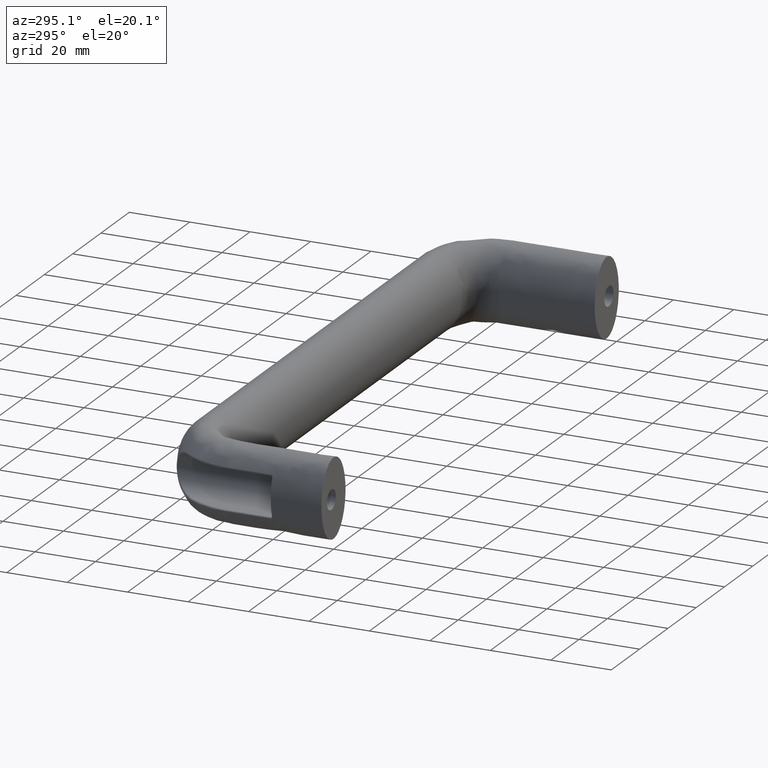
[diagram: clean part render]
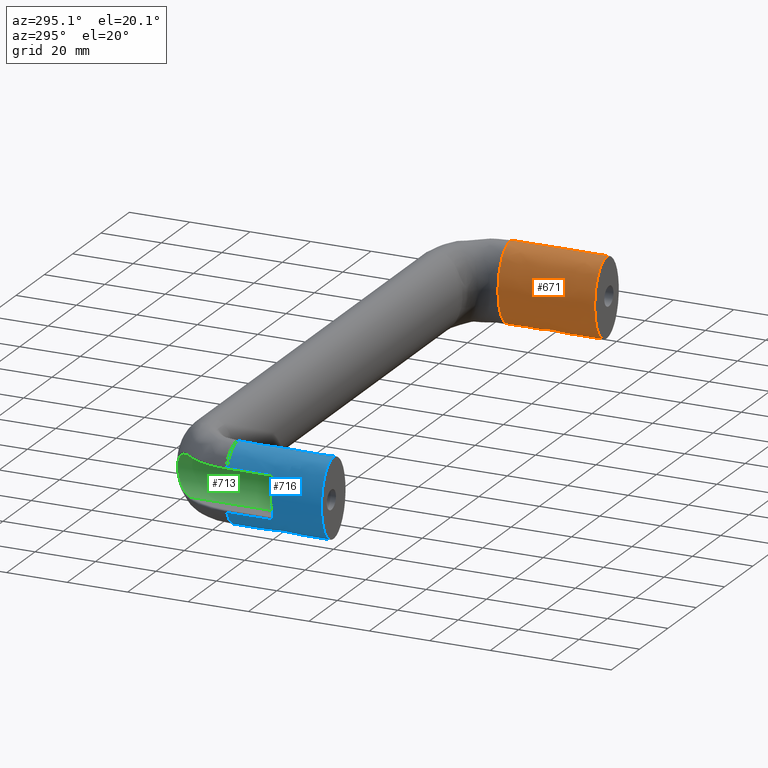
[diagram: same view with three faces highlighted in distinct colors, each labeled with its STEP entity id]
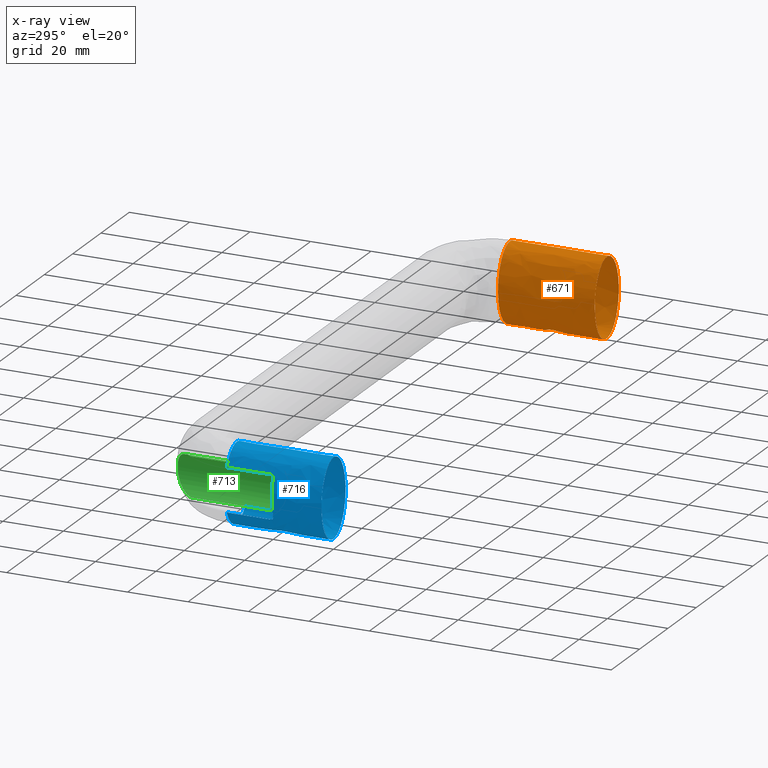
[diagram: x-ray of the same camera — body ghosted, the three highlighted faces saturated]
A machine part, auxiliary view with three faces highlighted in distinct colors.
The next image is the same camera in x-ray (body ghosted, the three faces saturated) — at least one of them is partly hidden behind the body in this view.
Their STEP definitions:

[orange] entity #671 — the highlighted face is a freeform B-spline surface patch.
#52=LINE('',#1045,#74);
#53=LINE('',#1051,#75);
#54=LINE('',#1069,#76);
#74=VECTOR('',#816,32.0000000000001);
#75=VECTOR('',#821,14.5000000000001);
#76=VECTOR('',#824,14.5000000000001);
#164=FACE_OUTER_BOUND('',#214,.T.);
#214=EDGE_LOOP('',(#476,#477,#478,#479,#480,#481,#482,#483,#484,#485,#486));
#277=B_SPLINE_CURVE_WITH_KNOTS('',3,(#1053,#1054,#1055,#1056,#1057,#1058),
 .UNSPECIFIED.,.F.,.F.,(4,1,1,4),(-0.162801566641003,-0.116286833315002,
-0.0697720999890013,0.),.UNSPECIFIED.);
#278=B_SPLINE_CURVE_WITH_KNOTS('',3,(#1062,#1063,#1064,#1065,#1066,#1067),
 .UNSPECIFIED.,.F.,.F.,(4,1,1,4),(-0.162803649215569,-0.116288320868263,
-0.0930306566946107,0.),.UNSPECIFIED.);
#301=ELLIPSE('',#723,13.,8.5);
#302=ELLIPSE('',#725,13.,8.5);
#303=ELLIPSE('',#726,13.,8.5);
#304=ELLIPSE('',#727,12.9999999999838,8.49999999997735);
#305=ELLIPSE('',#728,13.,8.5);
#313=VERTEX_POINT('',#1022);
#315=VERTEX_POINT('',#1044);
#316=VERTEX_POINT('',#1046);
#317=VERTEX_POINT('',#1048);
#318=VERTEX_POINT('',#1050);
#319=VERTEX_POINT('',#1052);
#320=VERTEX_POINT('',#1059);
#321=VERTEX_POINT('',#1061);
#322=VERTEX_POINT('',#1068);
#376=EDGE_CURVE('',#313,#313,#301,.T.);
#378=EDGE_CURVE('',#313,#315,#52,.T.);
#379=EDGE_CURVE('',#315,#316,#302,.T.);
#380=EDGE_CURVE('',#316,#317,#303,.T.);
#381=EDGE_CURVE('',#318,#317,#53,.T.);
#382=EDGE_CURVE('',#319,#318,#277,.T.);
#383=EDGE_CURVE('',#320,#319,#304,.T.);
#384=EDGE_CURVE('',#321,#320,#278,.T.);
#385=EDGE_CURVE('',#322,#321,#54,.T.);
#386=EDGE_CURVE('',#322,#315,#305,.T.);
#476=ORIENTED_EDGE('',*,*,#376,.F.);
#477=ORIENTED_EDGE('',*,*,#378,.T.);
#478=ORIENTED_EDGE('',*,*,#379,.T.);
#479=ORIENTED_EDGE('',*,*,#380,.T.);
#480=ORIENTED_EDGE('',*,*,#381,.F.);
#481=ORIENTED_EDGE('',*,*,#382,.F.);
#482=ORIENTED_EDGE('',*,*,#383,.F.);
#483=ORIENTED_EDGE('',*,*,#384,.F.);
#484=ORIENTED_EDGE('',*,*,#385,.F.);
#485=ORIENTED_EDGE('',*,*,#386,.T.);
#486=ORIENTED_EDGE('',*,*,#378,.F.);
#665=(
BOUNDED_SURFACE()
B_SPLINE_SURFACE(2,1,((#1026,#1027),(#1028,#1029),(#1030,#1031),(#1032,
#1033),(#1034,#1035),(#1036,#1037),(#1038,#1039),(#1040,#1041),(#1042,#1043)),
 .UNSPECIFIED.,.T.,.F.,.F.)
B_SPLINE_SURFACE_WITH_KNOTS((3,2,2,2,3),(2,2),(-3.14159265358979,-1.5707963267949,
0.,1.5707963267949,3.14159265358979),(0.,3.84000000000001),
 .UNSPECIFIED.)
GEOMETRIC_REPRESENTATION_ITEM()
RATIONAL_B_SPLINE_SURFACE(((1.,1.),(0.707106781186548,0.707106781186548),
(1.,1.),(0.707106781186548,0.707106781186548),(1.,1.),(0.707106781186548,
0.707106781186548),(1.,1.),(0.707106781186548,0.707106781186548),(1.,1.)))
REPRESENTATION_ITEM('')
SURFACE()
);
#671=ADVANCED_FACE('',(#164),#665,.T.);
#723=AXIS2_PLACEMENT_3D('',#1023,#812,#813);
#725=AXIS2_PLACEMENT_3D('',#1047,#817,#818);
#726=AXIS2_PLACEMENT_3D('',#1049,#819,#820);
#727=AXIS2_PLACEMENT_3D('',#1060,#822,#823);
#728=AXIS2_PLACEMENT_3D('',#1070,#825,#826);
#812=DIRECTION('center_axis',(3.44509284839767E-16,-1.,0.));
#813=DIRECTION('ref_axis',(0.,0.,-1.));
#816=DIRECTION('',(0.,1.,0.));
#817=DIRECTION('center_axis',(3.44509284839767E-16,-1.,0.));
#818=DIRECTION('ref_axis',(0.,0.,-1.));
#819=DIRECTION('center_axis',(3.44509284839767E-16,-1.,0.));
#820=DIRECTION('ref_axis',(0.,0.,-1.));
#821=DIRECTION('',(0.,1.,0.));
#822=DIRECTION('center_axis',(4.36670599670736E-15,1.,-3.9236175640155E-26));
#823=DIRECTION('ref_axis',(-4.29576659534567E-14,3.94237591376785E-26,1.));
#824=DIRECTION('',(0.,-1.,0.));
#825=DIRECTION('center_axis',(3.44509284839767E-16,-1.,0.));
#826=DIRECTION('ref_axis',(0.,0.,-1.));
#1022=CARTESIAN_POINT('',(193.,-4.44089209850063E-15,13.));
#1023=CARTESIAN_POINT('Origin',(193.,0.,0.));
#1026=CARTESIAN_POINT('Ctrl Pts',(193.,32.0000000000001,13.));
#1027=CARTESIAN_POINT('Ctrl Pts',(193.,-6.40000000000002,13.));
#1028=CARTESIAN_POINT('Ctrl Pts',(184.5,32.0000000000001,13.));
#1029=CARTESIAN_POINT('Ctrl Pts',(184.5,-6.40000000000002,13.));
#1030=CARTESIAN_POINT('Ctrl Pts',(184.5,32.0000000000001,0.));
#1031=CARTESIAN_POINT('Ctrl Pts',(184.5,-6.40000000000002,0.));
#1032=CARTESIAN_POINT('Ctrl Pts',(184.5,32.0000000000001,-13.));
#1033=CARTESIAN_POINT('Ctrl Pts',(184.5,-6.40000000000002,-13.));
#1034=CARTESIAN_POINT('Ctrl Pts',(193.,32.0000000000001,-13.));
#1035=CARTESIAN_POINT('Ctrl Pts',(193.,-6.40000000000002,-13.));
#1036=CARTESIAN_POINT('Ctrl Pts',(201.5,32.0000000000001,-13.));
#1037=CARTESIAN_POINT('Ctrl Pts',(201.5,-6.40000000000002,-13.));
#1038=CARTESIAN_POINT('Ctrl Pts',(201.5,32.0000000000001,0.));
#1039=CARTESIAN_POINT('Ctrl Pts',(201.5,-6.40000000000002,0.));
#1040=CARTESIAN_POINT('Ctrl Pts',(201.5,32.0000000000001,13.));
#1041=CARTESIAN_POINT('Ctrl Pts',(201.5,-6.40000000000002,13.));
#1042=CARTESIAN_POINT('Ctrl Pts',(193.,32.0000000000001,13.));
#1043=CARTESIAN_POINT('Ctrl Pts',(193.,-6.40000000000002,13.));
#1044=CARTESIAN_POINT('',(193.,32.0000000000001,13.));
#1045=CARTESIAN_POINT('',(193.,32.0000000000001,13.));
#1046=CARTESIAN_POINT('',(193.,32.0000000000001,-13.));
#1047=CARTESIAN_POINT('Origin',(193.,32.0000000000001,0.));
#1048=CARTESIAN_POINT('',(200.077522929227,32.0000000000001,-7.19939933334315));
#1049=CARTESIAN_POINT('Origin',(193.,32.0000000000001,0.));
#1050=CARTESIAN_POINT('',(200.07752292926,17.5,-7.19939933326705));
#1051=CARTESIAN_POINT('',(200.07752292926,32.0000000000001,-7.19939933326705));
#1052=CARTESIAN_POINT('',(200.483005916871,16.5,-6.16613274206217));
#1053=CARTESIAN_POINT('Ctrl Pts',(200.483005916871,16.5,-6.16613274206218));
#1054=CARTESIAN_POINT('Ctrl Pts',(200.429844379381,16.4999999999859,-6.31703981823328));
#1055=CARTESIAN_POINT('Ctrl Pts',(200.3192490492,16.5653336977449,-6.61635071145327));
#1056=CARTESIAN_POINT('Ctrl Pts',(200.143213815373,16.886016146742,-7.05109343631951));
#1057=CARTESIAN_POINT('Ctrl Pts',(200.077522929227,17.2674263333699,-7.19939933334316));
#1058=CARTESIAN_POINT('Ctrl Pts',(200.077522929227,17.4999999999999,-7.19939933334307));
#1059=CARTESIAN_POINT('',(200.483005916982,16.5,6.16613274174768));
#1060=CARTESIAN_POINT('Origin',(193.000000000023,16.5,4.2410519540681E-13));
#1061=CARTESIAN_POINT('',(200.07752292926,17.5,7.19939933326707));
#1062=CARTESIAN_POINT('Ctrl Pts',(200.077522929227,17.5,7.19939933334316));
#1063=CARTESIAN_POINT('Ctrl Pts',(200.077522929227,17.3449489055089,7.19939933334319));
#1064=CARTESIAN_POINT('Ctrl Pts',(200.102737874363,17.1140330730565,7.1414986452404));
#1065=CARTESIAN_POINT('Ctrl Pts',(200.230215074373,16.6666940516964,6.84058929021712));
#1066=CARTESIAN_POINT('Ctrl Pts',(200.376681481913,16.4999999998828,6.46795075492982));
#1067=CARTESIAN_POINT('Ctrl Pts',(200.483005916982,16.5,6.16613274174767));
#1068=CARTESIAN_POINT('',(200.07752292926,32.0000000000001,7.19939933326706));
#1069=CARTESIAN_POINT('',(200.07752292926,32.0000000000001,7.19939933326707));
#1070=CARTESIAN_POINT('Origin',(193.,32.0000000000001,0.));

[blue] entity #716 — the highlighted face is a freeform B-spline surface patch.
#65=LINE('',#1593,#87);
#67=LINE('',#1781,#89);
#73=LINE('',#1876,#95);
#87=VECTOR('',#947,14.5);
#89=VECTOR('',#957,14.5);
#95=VECTOR('',#991,32.);
#209=FACE_OUTER_BOUND('',#273,.T.);
#273=EDGE_LOOP('',(#651,#652,#653,#654,#655,#656,#657,#658,#659,#660,#661));
#290=B_SPLINE_CURVE_WITH_KNOTS('',3,(#1529,#1530,#1531,#1532,#1533,#1534),
 .UNSPECIFIED.,.F.,.F.,(4,1,1,4),(-0.162803649215564,-0.11628832086826,
-0.0697729925209562,0.),.UNSPECIFIED.);
#291=B_SPLINE_CURVE_WITH_KNOTS('',3,(#1574,#1575,#1576,#1577,#1578,#1579),
 .UNSPECIFIED.,.F.,.F.,(4,1,1,4),(-0.162801566641001,-0.116286833315001,
-0.0697720999890005,0.),.UNSPECIFIED.);
#306=ELLIPSE('',#794,13.0000000000007,8.50000000000101);
#307=ELLIPSE('',#795,13.,8.5);
#308=ELLIPSE('',#796,13.,8.5);
#309=ELLIPSE('',#798,13.,8.5);
#310=ELLIPSE('',#802,13.,8.5);
#355=VERTEX_POINT('',#1526);
#356=VERTEX_POINT('',#1528);
#357=VERTEX_POINT('',#1572);
#358=VERTEX_POINT('',#1573);
#361=VERTEX_POINT('',#1591);
#367=VERTEX_POINT('',#1768);
#370=VERTEX_POINT('',#1846);
#371=VERTEX_POINT('',#1848);
#372=VERTEX_POINT('',#1875);
#436=EDGE_CURVE('',#355,#356,#290,.T.);
#438=EDGE_CURVE('',#357,#358,#291,.T.);
#443=EDGE_CURVE('',#361,#355,#65,.T.);
#454=EDGE_CURVE('',#358,#367,#67,.T.);
#461=EDGE_CURVE('',#356,#357,#306,.T.);
#462=EDGE_CURVE('',#367,#370,#307,.T.);
#463=EDGE_CURVE('',#370,#371,#308,.T.);
#465=EDGE_CURVE('',#371,#361,#309,.T.);
#468=EDGE_CURVE('',#370,#372,#73,.T.);
#469=EDGE_CURVE('',#372,#372,#310,.T.);
#651=ORIENTED_EDGE('',*,*,#443,.F.);
#652=ORIENTED_EDGE('',*,*,#465,.F.);
#653=ORIENTED_EDGE('',*,*,#463,.F.);
#654=ORIENTED_EDGE('',*,*,#468,.T.);
#655=ORIENTED_EDGE('',*,*,#469,.T.);
#656=ORIENTED_EDGE('',*,*,#468,.F.);
#657=ORIENTED_EDGE('',*,*,#462,.F.);
#658=ORIENTED_EDGE('',*,*,#454,.F.);
#659=ORIENTED_EDGE('',*,*,#438,.F.);
#660=ORIENTED_EDGE('',*,*,#461,.F.);
#661=ORIENTED_EDGE('',*,*,#436,.F.);
#668=(
BOUNDED_SURFACE()
B_SPLINE_SURFACE(2,1,((#1857,#1858),(#1859,#1860),(#1861,#1862),(#1863,
#1864),(#1865,#1866),(#1867,#1868),(#1869,#1870),(#1871,#1872),(#1873,#1874)),
 .UNSPECIFIED.,.T.,.F.,.F.)
B_SPLINE_SURFACE_WITH_KNOTS((3,2,2,2,3),(2,2),(-3.14159265358979,-1.5707963267949,
0.,1.5707963267949,3.14159265358979),(0.,3.84),.UNSPECIFIED.)
GEOMETRIC_REPRESENTATION_ITEM()
RATIONAL_B_SPLINE_SURFACE(((1.,1.),(0.707106781186548,0.707106781186548),
(1.,1.),(0.707106781186548,0.707106781186548),(1.,1.),(0.707106781186548,
0.707106781186548),(1.,1.),(0.707106781186548,0.707106781186548),(1.,1.)))
REPRESENTATION_ITEM('')
SURFACE()
);
#716=ADVANCED_FACE('',(#209),#668,.T.);
#794=AXIS2_PLACEMENT_3D('',#1818,#973,#974);
#795=AXIS2_PLACEMENT_3D('',#1847,#975,#976);
#796=AXIS2_PLACEMENT_3D('',#1849,#977,#978);
#798=AXIS2_PLACEMENT_3D('',#1851,#981,#982);
#802=AXIS2_PLACEMENT_3D('',#1877,#992,#993);
#947=DIRECTION('',(1.73472347597681E-16,-1.,0.));
#957=DIRECTION('',(-1.73472347597681E-16,1.,0.));
#973=DIRECTION('center_axis',(2.18335285217344E-15,1.,-1.96157278075204E-26));
#974=DIRECTION('ref_axis',(-5.43110620688082E-15,1.96275858287477E-26,1.));
#975=DIRECTION('center_axis',(0.,1.,0.));
#976=DIRECTION('ref_axis',(0.,0.,-1.));
#977=DIRECTION('center_axis',(0.,1.,0.));
#978=DIRECTION('ref_axis',(0.,0.,-1.));
#981=DIRECTION('center_axis',(0.,1.,0.));
#982=DIRECTION('ref_axis',(0.,0.,-1.));
#991=DIRECTION('',(1.73472347597681E-16,-1.,0.));
#992=DIRECTION('center_axis',(0.,1.,0.));
#993=DIRECTION('ref_axis',(0.,0.,-1.));
#1526=CARTESIAN_POINT('',(-7.07752292926048,17.5,-7.19939933326705));
#1528=CARTESIAN_POINT('',(-7.48300591698164,16.5,-6.16613274174768));
#1529=CARTESIAN_POINT('Ctrl Pts',(-7.07752292922739,17.5,-7.19939933334315));
#1530=CARTESIAN_POINT('Ctrl Pts',(-7.07752292922739,17.344948905509,-7.19939933334315));
#1531=CARTESIAN_POINT('Ctrl Pts',(-7.11148146669345,17.0359268522296,-7.12201041401155));
#1532=CARTESIAN_POINT('Ctrl Pts',(-7.2609256925932,16.6224701056188,-6.76616779655913));
#1533=CARTESIAN_POINT('Ctrl Pts',(-7.40326259068019,16.4999999999122,-6.39249625163423));
#1534=CARTESIAN_POINT('Ctrl Pts',(-7.48300591698164,16.5,-6.16613274174768));
#1572=CARTESIAN_POINT('',(-7.48300591687084,16.5,6.1661327420622));
#1573=CARTESIAN_POINT('',(-7.07752292926047,17.5,7.19939933326707));
#1574=CARTESIAN_POINT('Ctrl Pts',(-7.48300591687084,16.5,6.1661327420622));
#1575=CARTESIAN_POINT('Ctrl Pts',(-7.4298443793813,16.499999999986,6.31703981823325));
#1576=CARTESIAN_POINT('Ctrl Pts',(-7.31924589596769,16.5653278864208,6.61635681753704));
#1577=CARTESIAN_POINT('Ctrl Pts',(-7.14320757920186,16.8860053352928,7.05110482725177));
#1578=CARTESIAN_POINT('Ctrl Pts',(-7.07752292922738,17.2674263333702,7.19939933334317));
#1579=CARTESIAN_POINT('Ctrl Pts',(-7.07752292922738,17.5,7.19939933334317));
#1591=CARTESIAN_POINT('',(-7.07752292926049,32.,-7.19939933326705));
#1593=CARTESIAN_POINT('',(-7.07752292926048,-1.22775451771523E-15,-7.19939933326705));
#1768=CARTESIAN_POINT('',(-7.07752292922738,32.,7.19939933334317));
#1781=CARTESIAN_POINT('',(-7.07752292926047,-1.22775451771523E-15,7.19939933326707));
#1818=CARTESIAN_POINT('Origin',(1.00364161426114E-12,16.5,-5.44009282066327E-14));
#1846=CARTESIAN_POINT('',(-4.51016534385053E-15,32.,13.));
#1847=CARTESIAN_POINT('Origin',(-5.55111512312578E-15,32.,0.));
#1848=CARTESIAN_POINT('',(-5.55111512312578E-15,32.,-13.));
#1849=CARTESIAN_POINT('Origin',(-5.55111512312578E-15,32.,0.));
#1851=CARTESIAN_POINT('Origin',(-5.55111512312578E-15,32.,0.));
#1857=CARTESIAN_POINT('Ctrl Pts',(2.5578757073893E-31,-1.47451495458029E-15,
13.));
#1858=CARTESIAN_POINT('Ctrl Pts',(-6.66133814775094E-15,38.4,13.));
#1859=CARTESIAN_POINT('Ctrl Pts',(8.5,-4.93038065763132E-31,13.));
#1860=CARTESIAN_POINT('Ctrl Pts',(8.49999999999999,38.4,13.));
#1861=CARTESIAN_POINT('Ctrl Pts',(8.5,0.,0.));
#1862=CARTESIAN_POINT('Ctrl Pts',(8.49999999999999,38.4,0.));
#1863=CARTESIAN_POINT('Ctrl Pts',(8.5,-3.69778549322349E-31,-13.));
#1864=CARTESIAN_POINT('Ctrl Pts',(8.49999999999999,38.4,-13.));
#1865=CARTESIAN_POINT('Ctrl Pts',(2.5578757073893E-31,-1.47451495458029E-15,
-13.));
#1866=CARTESIAN_POINT('Ctrl Pts',(-6.66133814775094E-15,38.4,-13.));
#1867=CARTESIAN_POINT('Ctrl Pts',(-8.5,-2.94902990916057E-15,-13.));
#1868=CARTESIAN_POINT('Ctrl Pts',(-8.50000000000001,38.4,-13.));
#1869=CARTESIAN_POINT('Ctrl Pts',(-8.5,-2.94902990916057E-15,0.));
#1870=CARTESIAN_POINT('Ctrl Pts',(-8.50000000000001,38.4,0.));
#1871=CARTESIAN_POINT('Ctrl Pts',(-8.5,-2.94902990916057E-15,13.));
#1872=CARTESIAN_POINT('Ctrl Pts',(-8.50000000000001,38.4,13.));
#1873=CARTESIAN_POINT('Ctrl Pts',(2.5578757073893E-31,-1.47451495458029E-15,
13.));
#1874=CARTESIAN_POINT('Ctrl Pts',(-6.66133814775094E-15,38.4,13.));
#1875=CARTESIAN_POINT('',(1.04094977927525E-15,-1.47451495458029E-15,13.));
#1876=CARTESIAN_POINT('',(1.04094977927525E-15,1.80576001942165E-31,13.));
#1877=CARTESIAN_POINT('Origin',(0.,0.,0.));

[green] entity #713 — the highlighted cylindrical surface (edge-blend (fillet) strip) has radius 6.5 mm, axis along (0, -1, 0).
#51=CYLINDRICAL_SURFACE('',#799,6.5);
#71=LINE('',#1853,#93);
#72=LINE('',#1854,#94);
#93=VECTOR('',#985,29.0082159809616);
#94=VECTOR('',#986,29.0082159809616);
#150=CIRCLE('',#792,6.5);
#206=FACE_OUTER_BOUND('',#270,.T.);
#270=EDGE_LOOP('',(#639,#640,#641,#642));
#296=B_SPLINE_CURVE_WITH_KNOTS('',3,(#1725,#1726,#1727,#1728,#1729,#1730,
#1731,#1732,#1733,#1734,#1735,#1736),.UNSPECIFIED.,.F.,.F.,(4,1,1,1,1,1,
1,1,1,4),(1.97568226080099E-11,0.391019060009876,0.782038119999995,0.977547649995054,
1.17305717999011,1.36856670998517,1.56407623998023,1.95509529997035,2.34611435996047,
2.73713341995059),.UNSPECIFIED.);
#362=VERTEX_POINT('',#1625);
#364=VERTEX_POINT('',#1710);
#368=VERTEX_POINT('',#1784);
#369=VERTEX_POINT('',#1788);
#450=EDGE_CURVE('',#362,#364,#296,.T.);
#459=EDGE_CURVE('',#369,#368,#150,.T.);
#466=EDGE_CURVE('',#362,#368,#71,.T.);
#467=EDGE_CURVE('',#364,#369,#72,.T.);
#639=ORIENTED_EDGE('',*,*,#450,.F.);
#640=ORIENTED_EDGE('',*,*,#466,.T.);
#641=ORIENTED_EDGE('',*,*,#459,.F.);
#642=ORIENTED_EDGE('',*,*,#467,.F.);
#713=ADVANCED_FACE('',(#206),#51,.F.);
#792=AXIS2_PLACEMENT_3D('',#1790,#968,#969);
#799=AXIS2_PLACEMENT_3D('',#1852,#983,#984);
#968=DIRECTION('center_axis',(0.,1.,0.));
#969=DIRECTION('ref_axis',(1.,0.,6.12323399573677E-17));
#983=DIRECTION('center_axis',(0.,-1.,0.));
#984=DIRECTION('ref_axis',(0.,0.,1.));
#985=DIRECTION('',(0.,-1.,0.));
#986=DIRECTION('',(0.,-1.,0.));
#1625=CARTESIAN_POINT('',(-1.50000000008955,46.5082159809616,-6.49999999999999));
#1710=CARTESIAN_POINT('',(-1.50000000008316,46.5082159809616,6.50000000000001));
#1725=CARTESIAN_POINT('Ctrl Pts',(-1.50000000015189,46.5082159809809,-6.49999999999999));
#1726=CARTESIAN_POINT('Ctrl Pts',(-0.740484069630458,47.5230150583374,-6.50000000001773));
#1727=CARTESIAN_POINT('Ctrl Pts',(0.845357270549544,49.4931260720111,-6.23737738787712));
#1728=CARTESIAN_POINT('Ctrl Pts',(2.82405373669811,51.6821555192111,-5.03274739256));
#1729=CARTESIAN_POINT('Ctrl Pts',(4.12803367749433,53.0290329212478,-3.38895215627259));
#1730=CARTESIAN_POINT('Ctrl Pts',(4.82559283875281,53.7226126368366,-1.81320414118463));
#1731=CARTESIAN_POINT('Ctrl Pts',(5.08755213973397,53.9765750696474,-0.00306519284926109));
#1732=CARTESIAN_POINT('Ctrl Pts',(4.73882901828299,53.6385129430345,2.42601529248889));
#1733=CARTESIAN_POINT('Ctrl Pts',(3.21510632148922,52.1166628858081,4.80533482700031));
#1734=CARTESIAN_POINT('Ctrl Pts',(0.849031387690694,49.4959856652581,6.23084013959578));
#1735=CARTESIAN_POINT('Ctrl Pts',(-0.740484069645105,47.5230150583187,6.50000000001944));
#1736=CARTESIAN_POINT('Ctrl Pts',(-1.5000000001663,46.5082159809616,6.50000000000001));
#1784=CARTESIAN_POINT('',(-1.50000000000001,17.5,-6.49999999999999));
#1788=CARTESIAN_POINT('',(-1.50000000000001,17.5,6.50000000000001));
#1790=CARTESIAN_POINT('Origin',(-1.50000000000001,17.5,9.95025524307224E-15));
#1852=CARTESIAN_POINT('Origin',(-1.50000000000001,57.,9.95025524307224E-15));
#1853=CARTESIAN_POINT('',(-1.50000000000001,57.,-6.49999999999999));
#1854=CARTESIAN_POINT('',(-1.50000000000001,57.,6.50000000000001));